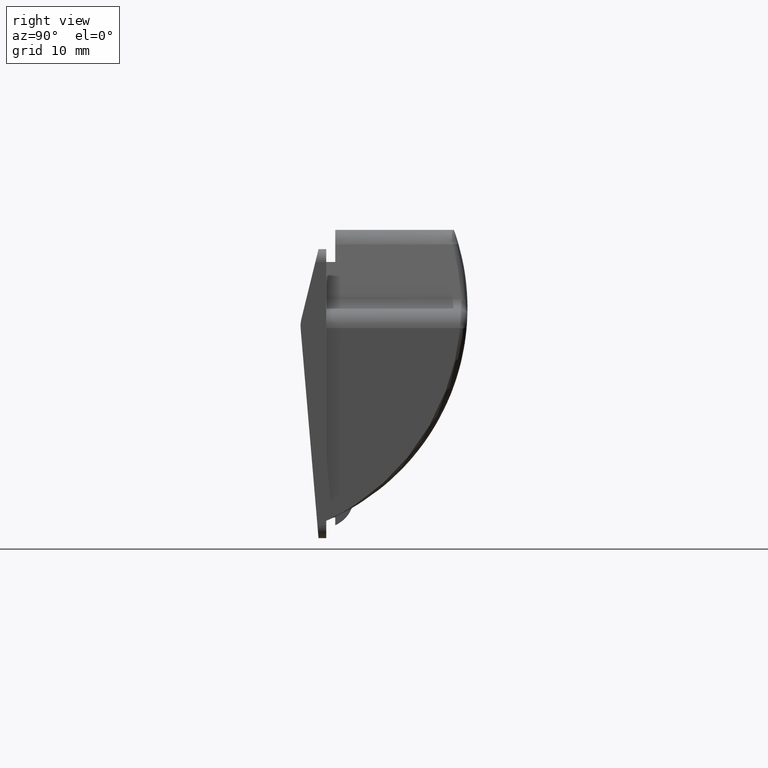
[diagram: clean part render]
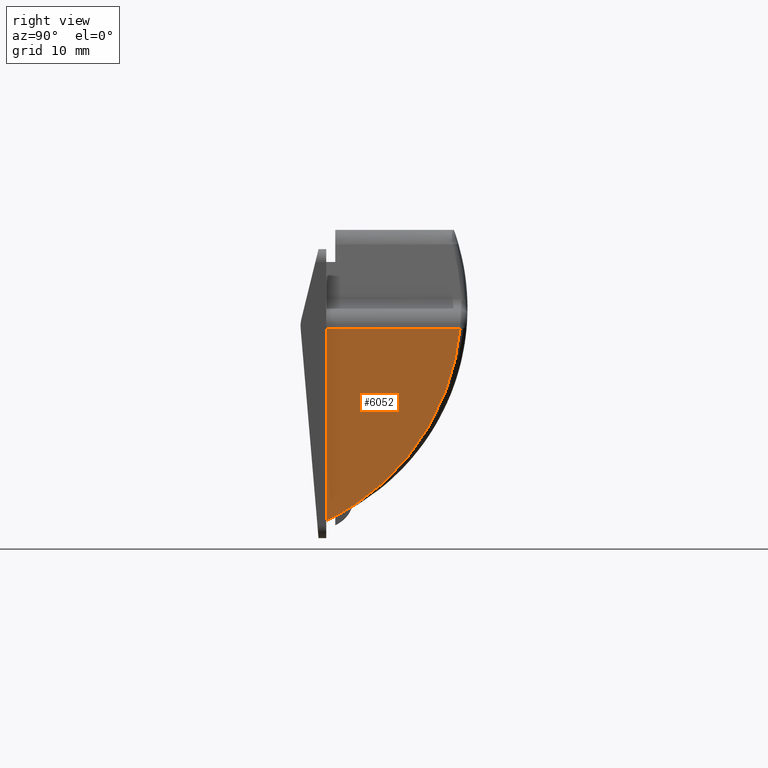
[diagram: same view with one face highlighted and labeled with its STEP entity id]
A machine part, right view. The second image highlights one B-rep face of the part: STEP entity #6052.
In plain terms, the highlighted face is a freeform B-spline surface patch.
Its self-contained STEP definition (entity closure, byte-faithful):
#1473=CARTESIAN_POINT('',(47.899999999999999,20.856489700101001,9.449999999999900));
#1474=VERTEX_POINT('',#1473);
#1484=CARTESIAN_POINT('',(47.899999999999999,0.0,-20.550000000000001));
#1485=VERTEX_POINT('',#1484);
#1486=CARTESIAN_POINT('',(47.899999999999999,0.0,-20.550000000000100));
#1487=CARTESIAN_POINT('',(47.899999999999999,4.385370166178015,-18.496231806461601));
#1488=CARTESIAN_POINT('',(47.899999999999999,8.113211194849090,-15.316888034797049));
#1489=CARTESIAN_POINT('',(47.899999999999999,11.793295859973020,-12.178273976613600));
#1490=CARTESIAN_POINT('',(47.899999999999999,14.513078355885000,-8.215867181602100));
#1491=CARTESIAN_POINT('',(47.899999999999999,17.200475633310951,-4.300641883631500));
#1492=CARTESIAN_POINT('',(47.899999999999999,18.821397906283011,0.230904716488239));
#1493=CARTESIAN_POINT('',(47.899999999999999,20.426565076639982,4.718405415777840));
#1494=CARTESIAN_POINT('',(47.899999999999999,20.856489700101012,9.449999999999900));
#1495=B_SPLINE_CURVE_WITH_KNOTS('',2,(#1486,#1487,#1488,#1489,#1490,#1491,#1492,#1493,#1494),.UNSPECIFIED.,.F.,.U.,(3,2,2,2,3),(0.0,0.250000000000000,0.500000000000000,0.750000000000000,1.0),.UNSPECIFIED.);
#1496=EDGE_CURVE('',#1485,#1474,#1495,.T.);
#5759=CARTESIAN_POINT('',(47.899999999999999,0.0,9.449999999999900));
#5760=VERTEX_POINT('',#5759);
#5761=CARTESIAN_POINT('',(47.899999999999999,0.0,9.449999999999900));
#5762=CARTESIAN_POINT('',(47.899999999999999,0.0,-20.550000000000001));
#5763=QUASI_UNIFORM_CURVE('',1,(#5761,#5762),.UNSPECIFIED.,.F.,.U.);
#5764=EDGE_CURVE('',#5760,#1485,#5763,.T.);
#6038=CARTESIAN_POINT('',(47.899999999999999,-1.041781545582089,-22.048499096998569));
#6039=CARTESIAN_POINT('',(47.900000000000013,-1.041781545582089,10.948500706323880));
#6040=CARTESIAN_POINT('',(47.899999999999999,21.898270313325341,-22.048499096998569));
#6041=CARTESIAN_POINT('',(47.900000000000013,21.898270313325341,10.948500706323880));
#6042=B_SPLINE_SURFACE_WITH_KNOTS('',1,1,((#6038,#6040),(#6039,#6041)),.UNSPECIFIED.,.F.,.F.,.U.,(2,2),(2,2),(0.0,32.996999803322453),(0.0,22.940051858907431),.UNSPECIFIED.);
#6043=ORIENTED_EDGE('',*,*,#5764,.T.);
#6044=ORIENTED_EDGE('',*,*,#1496,.T.);
#6045=CARTESIAN_POINT('',(47.899999999999999,20.856489700101001,9.449999999999900));
#6046=CARTESIAN_POINT('',(47.899999999999999,0.0,9.449999999999900));
#6047=QUASI_UNIFORM_CURVE('',1,(#6045,#6046),.UNSPECIFIED.,.F.,.U.);
#6048=EDGE_CURVE('',#1474,#5760,#6047,.T.);
#6049=ORIENTED_EDGE('',*,*,#6048,.T.);
#6050=EDGE_LOOP('',(#6043,#6044,#6049));
#6051=FACE_OUTER_BOUND('',#6050,.T.);
#6052=ADVANCED_FACE('',(#6051),#6042,.F.);